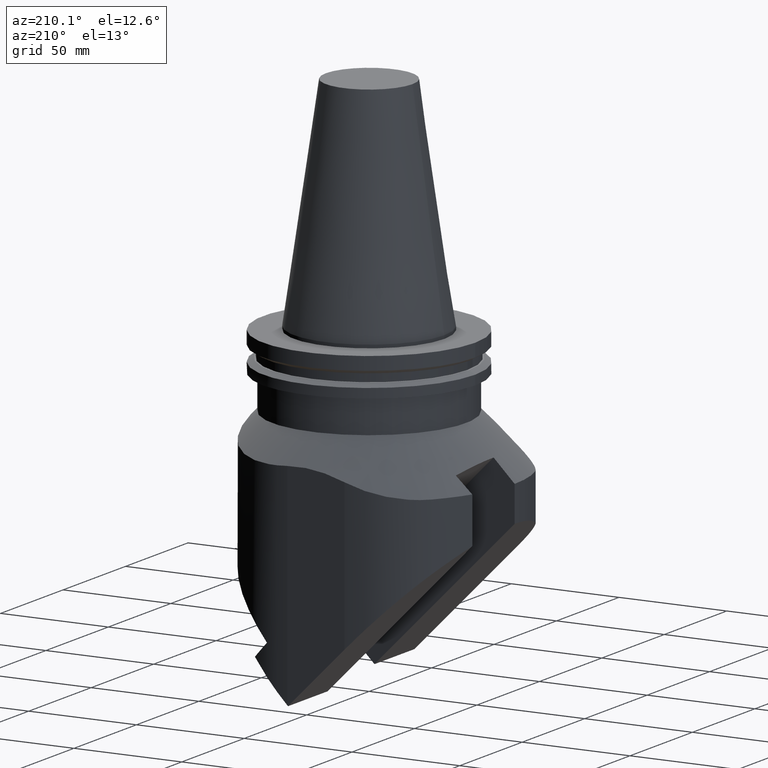
[diagram: clean part render]
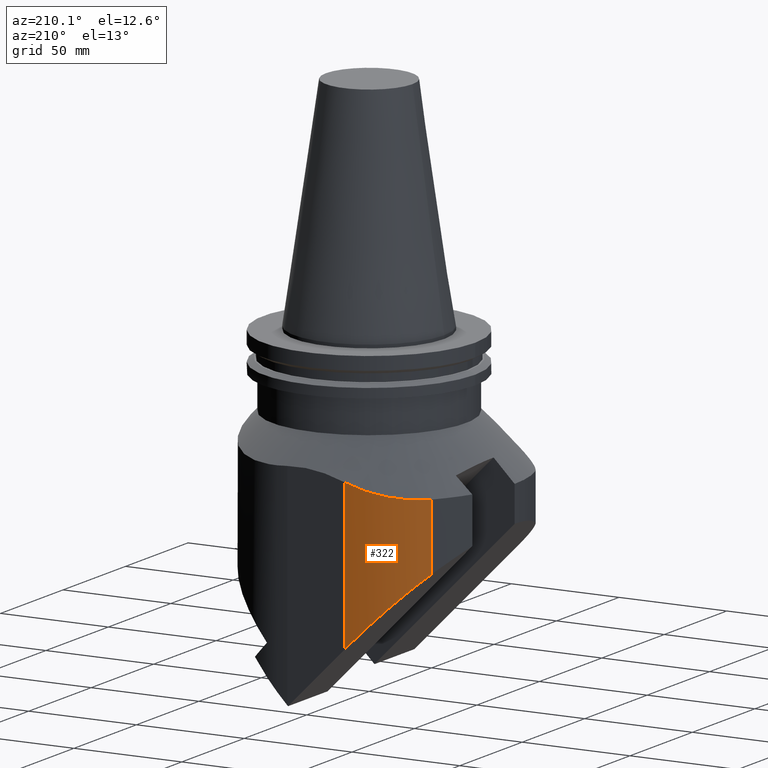
[diagram: same view with one face highlighted and labeled with its STEP entity id]
A machine part, auxiliary view. The second image highlights one B-rep face of the part: STEP entity #322.
In plain terms, the highlighted cylindrical surface (partial cylindrical patch) has radius 40 mm, axis along (-0, 0, 1).
Its self-contained STEP definition (entity closure, byte-faithful):
#172=EDGE_CURVE('Unnamed[1]',#449,#450,#451,.T.);
#188=EDGE_CURVE('Unnamed[1]',#474,#475,#476,.T.);
#244=EDGE_CURVE('Unnamed[1]',#474,#449,#559,.T.);
#322=ADVANCED_FACE('Unnamed[1]',(#654),#655,.T.);
#339=EDGE_CURVE('Unnamed[1]',#475,#450,#677,.T.);
#449=VERTEX_POINT('',#816);
#450=VERTEX_POINT('',#817);
#451=LINE('',#818,#819);
#474=VERTEX_POINT('',#848);
#475=VERTEX_POINT('',#849);
#476=LINE('',#850,#851);
#559=ELLIPSE('',#1036,56.5685424949238,40.0);
#654=FACE_OUTER_BOUND('',#1189,.T.);
#655=CYLINDRICAL_SURFACE('',#1190,40.0);
#677=B_SPLINE_CURVE_WITH_KNOTS('',3,(#1220,#1221,#1222,#1223,#1224,#1225,#1226,#1227,#1228,#1229,#1230,#1231,#1232,#1233,#1234,#1235,#1236,#1237,#1238,#1239,#1240,#1241),.UNSPECIFIED.,.F.,.F.,(4,2,2,2,2,2,2,2,2,2,4),(36.5646431316413,40.0970978492643,43.6295525668874,47.1620072845105,50.6944620021335,54.2269167197566,57.7593714373796,61.3000566152849,64.8407417931902,68.3814269710955,71.9221121490008),.UNSPECIFIED.);
#816=CARTESIAN_POINT('',(-53.0573718793563,41.7272727272723,-88.3426281206434));
#817=CARTESIAN_POINT('',(-53.0573718793535,41.7272727272725,-57.5000000000028));
#818=CARTESIAN_POINT('',(-53.0573718793563,41.7272727272723,-306.209870642012));
#819=VECTOR('',#1359,1.0);
#848=CARTESIAN_POINT('',(-21.6159663212192,56.9999999999998,-119.784033678781));
#849=CARTESIAN_POINT('',(-21.6159663212192,56.9999999999998,-50.9610531405111));
#850=CARTESIAN_POINT('',(-21.6159663212191,56.9999999999997,-306.209870642012));
#851=VECTOR('',#1391,1.0);
#1036=AXIS2_PLACEMENT_3D('',#1470,#1471,#1472);
#1189=EDGE_LOOP('',(#1583,#1584,#1585,#1586));
#1190=AXIS2_PLACEMENT_3D('',#1587,#1588,#1589);
#1220=CARTESIAN_POINT('',(-21.5353910327748,56.9999188452036,-50.9324528908404));
#1221=CARTESIAN_POINT('',(-22.7049811134673,57.0022748502506,-51.3480257205299));
#1222=CARTESIAN_POINT('',(-23.8894824651919,56.9531753945699,-51.7502634805879));
#1223=CARTESIAN_POINT('',(-26.2680698506384,56.7464845302972,-52.5211842511673));
#1224=CARTESIAN_POINT('',(-27.4621535745607,56.5888903190615,-52.8898736368783));
#1225=CARTESIAN_POINT('',(-29.839570012079,56.1641476082879,-53.5883264129587));
#1226=CARTESIAN_POINT('',(-31.0238483153255,55.8968264173502,-53.9183727764331));
#1227=CARTESIAN_POINT('',(-33.3634704221499,55.2552937036799,-54.5359795110697));
#1228=CARTESIAN_POINT('',(-34.5188118946553,54.8810772017675,-54.8235435407266));
#1229=CARTESIAN_POINT('',(-36.7813597591023,54.0333670583577,-55.353530655723));
#1230=CARTESIAN_POINT('',(-37.8886732546581,53.5598253915227,-55.5959810513155));
#1231=CARTESIAN_POINT('',(-40.0375438008536,52.5255866490888,-56.0346003209848));
#1232=CARTESIAN_POINT('',(-41.079097387238,51.9648823301297,-56.2307690875808));
#1233=CARTESIAN_POINT('',(-43.0828666031652,50.7718075903082,-56.5776027544454));
#1234=CARTESIAN_POINT('',(-44.079598217103,50.1186009289106,-56.734153407756));
#1235=CARTESIAN_POINT('',(-46.0353785835207,48.7040816016791,-57.0067589052658));
#1236=CARTESIAN_POINT('',(-46.9944280792531,47.9427711241,-57.1228197716458));
#1237=CARTESIAN_POINT('',(-48.8527199168296,46.3203113832659,-57.3100798577761));
#1238=CARTESIAN_POINT('',(-49.7520668877076,45.4590745791145,-57.3812941350529));
#1239=CARTESIAN_POINT('',(-51.4723026282612,43.6487947815273,-57.4763543907143));
#1240=CARTESIAN_POINT('',(-52.293192444024,42.6997529075624,-57.5002027574508));
#1241=CARTESIAN_POINT('',(-53.0672554428896,41.7147003337101,-57.4999986975727));
#1359=DIRECTION('',(-1.22464679914735E-016,2.22044604925031E-016,1.0));
#1391=DIRECTION('',(-1.22464679914735E-016,2.22044604925031E-016,1.0));
#1470=CARTESIAN_POINT('',(-21.6159663212192,16.9999999999998,-119.784033678781));
#1471=DIRECTION('',(0.707106781186547,2.71158374330535E-017,0.707106781186548));
#1472=DIRECTION('',(-0.707106781186548,3.73498259927251E-016,0.707106781186547));
#1583=ORIENTED_EDGE('',*,*,#244,.T.);
#1584=ORIENTED_EDGE('',*,*,#172,.T.);
#1585=ORIENTED_EDGE('',*,*,#339,.F.);
#1586=ORIENTED_EDGE('',*,*,#188,.F.);
#1587=CARTESIAN_POINT('',(-21.6159663212192,16.9999999999998,-306.209870642012));
#1588=DIRECTION('',(-1.22464679914735E-016,2.22044604925031E-016,1.0));
#1589=DIRECTION('',(3.06161699786838E-016,1.0,-2.22044604925031E-016));